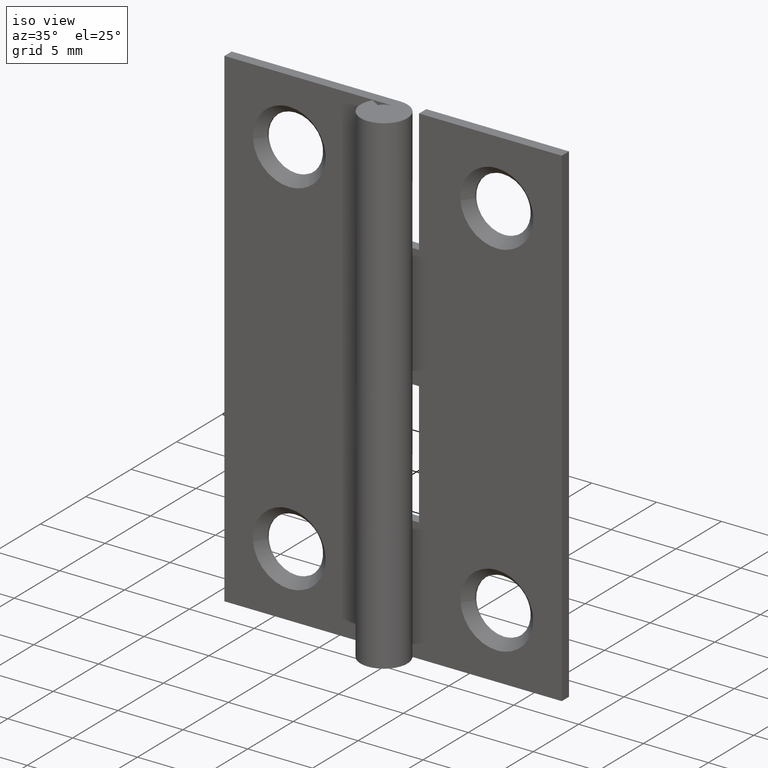
[diagram: clean part render]
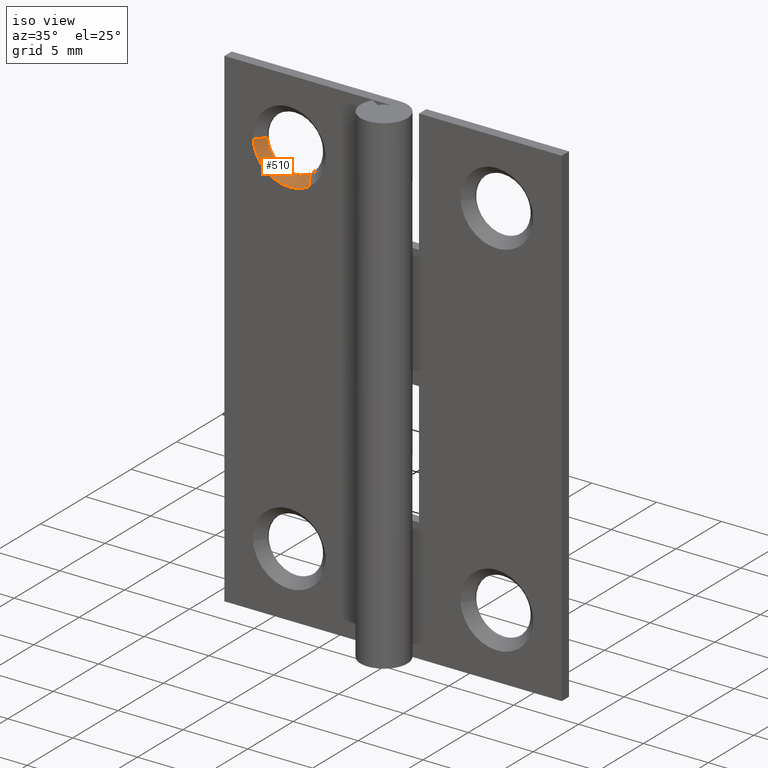
[diagram: same view with one face highlighted and labeled with its STEP entity id]
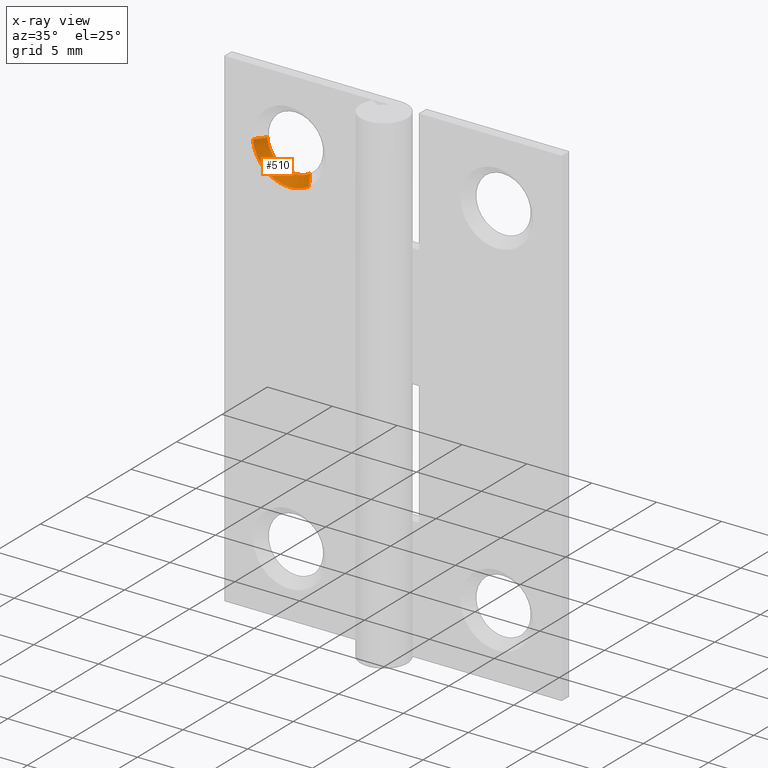
[diagram: x-ray of the same camera — body ghosted, the highlighted face saturated]
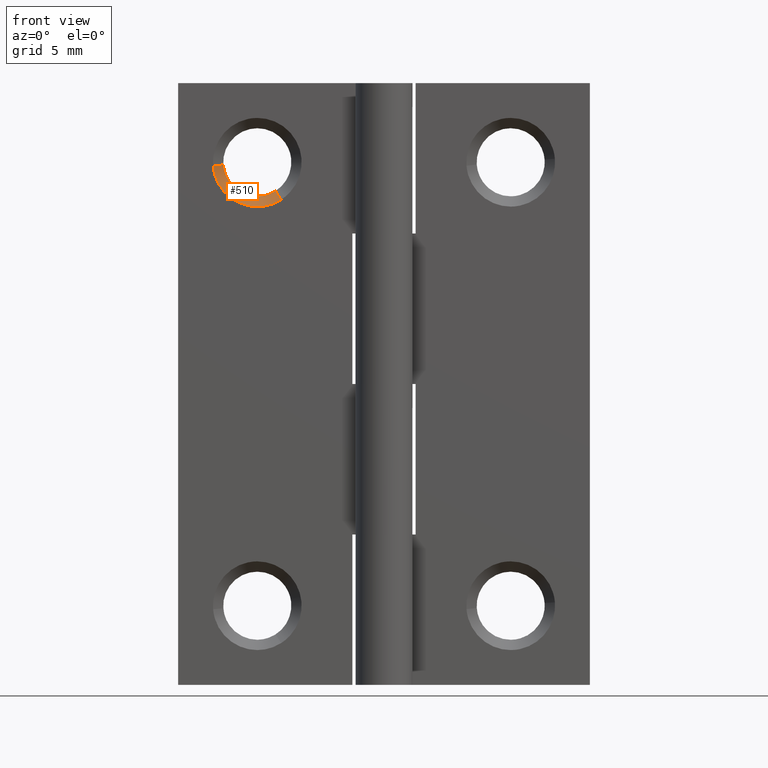
[diagram: same view with one face highlighted and labeled with its STEP entity id]
A machine part, iso view. The second image highlights one B-rep face of the part: STEP entity #510.
The next image is the same camera in x-ray: the body ghosted, the highlighted face saturated — about 0% of this face is hidden behind the body in this view.
A second angle (front view) of the same face is appended — the face is thin or edge-on in the first view.
In plain terms, the highlighted face is a freeform B-spline surface patch.
Its self-contained STEP definition (entity closure, byte-faithful):
#319=CARTESIAN_POINT('',(-6.843620794047136,1.649999952313591,31.187463894966118));
#320=VERTEX_POINT('',#319);
#336=CARTESIAN_POINT('',(-6.494017803996342,0.999999999999940,30.639487903379539));
#337=VERTEX_POINT('',#336);
#338=CARTESIAN_POINT('',(-6.843620794047136,1.649999952313591,31.187463894966118));
#339=CARTESIAN_POINT('',(-6.494017803996342,0.999999999999940,30.639487903379539));
#340=QUASI_UNIFORM_CURVE('',1,(#338,#339),.UNSPECIFIED.,.F.,.U.);
#341=EDGE_CURVE('',#320,#337,#340,.T.);
#360=CARTESIAN_POINT('',(-10.791368486928731,0.999999999968137,32.780314535458388));
#361=VERTEX_POINT('',#360);
#377=CARTESIAN_POINT('',(-10.143372267527150,1.649999952313921,32.831312944166797));
#378=VERTEX_POINT('',#377);
#379=CARTESIAN_POINT('',(-10.143372267527150,1.649999952313921,32.831312944166797));
#380=CARTESIAN_POINT('',(-10.791368486928731,0.999999999968137,32.780314535458388));
#381=QUASI_UNIFORM_CURVE('',1,(#379,#380),.UNSPECIFIED.,.F.,.U.);
#382=EDGE_CURVE('',#378,#361,#381,.T.);
#432=CARTESIAN_POINT('',(-10.127172362041479,1.666249951124192,32.832587904397180));
#433=CARTESIAN_POINT('',(-9.959760266438659,1.666249951124193,30.705415542355702));
#434=CARTESIAN_POINT('',(-7.832587904397179,1.666249951124192,30.872827637958519));
#435=CARTESIAN_POINT('',(-7.301485753890706,1.666249951124192,30.914626283701601));
#436=CARTESIAN_POINT('',(-6.852360868842992,1.666249951124192,31.201163294730598));
#437=CARTESIAN_POINT('',(-10.807973390037899,0.983343751221895,32.779007701485902));
#438=CARTESIAN_POINT('',(-10.586981091523803,0.983343751221895,29.971034311447998));
#439=CARTESIAN_POINT('',(-7.779007701485906,0.983343751221895,30.192026609962099));
#440=CARTESIAN_POINT('',(-7.077926429170562,0.983343751221895,30.247202902716097));
#441=CARTESIAN_POINT('',(-6.485059227376214,0.983343751221895,30.625446018595170));
#449=(BOUNDED_SURFACE()B_SPLINE_SURFACE(2,1,((#432,#437),(#433,#438),(#434,#439),(#435,#440),(#436,#441)),.UNSPECIFIED.,.F.,.F.,.U.)B_SPLINE_SURFACE_WITH_KNOTS((3,2,3),(2,2),(0.0,4.666788796142299,6.160161210907836),(0.0,1.0),.UNSPECIFIED.)GEOMETRIC_REPRESENTATION_ITEM()RATIONAL_B_SPLINE_SURFACE(((1.0,1.0),(0.707106781186548,0.707106781186548),(1.0,1.0),(0.906274169979695,0.906274169979695),(0.872532871172386,0.872532871172386)))REPRESENTATION_ITEM('')SURFACE());
#450=CARTESIAN_POINT('',(-8.0,1.649999952316285,30.850000000000001));
#451=VERTEX_POINT('',#450);
#452=CARTESIAN_POINT('',(-6.843620794047136,1.649999952313590,31.187463894966118));
#453=CARTESIAN_POINT('',(-7.372569680880419,1.649999952316285,30.850000000000005));
#454=CARTESIAN_POINT('',(-8.0,1.649999952316285,30.850000000000001));
#462=(BOUNDED_CURVE()B_SPLINE_CURVE(2,(#452,#453,#454),.UNSPECIFIED.,.F.,.U.)B_SPLINE_CURVE_WITH_KNOTS((3,3),(0.407950112620481,0.500000000000000),.UNSPECIFIED.)CURVE()GEOMETRIC_REPRESENTATION_ITEM()RATIONAL_B_SPLINE_CURVE((0.863729296950557,0.892156848775987,1.0))REPRESENTATION_ITEM(''));
#463=EDGE_CURVE('',#320,#451,#462,.T.);
#464=ORIENTED_EDGE('',*,*,#463,.T.);
#465=CARTESIAN_POINT('',(-8.0,1.649999952316285,30.850000000000001));
#466=CARTESIAN_POINT('',(-9.987439557031385,1.649999952316285,30.850000000000001));
#467=CARTESIAN_POINT('',(-10.143372267527154,1.649999952313921,32.831312944166797));
#475=(BOUNDED_CURVE()B_SPLINE_CURVE(2,(#465,#466,#467),.UNSPECIFIED.,.F.,.U.)B_SPLINE_CURVE_WITH_KNOTS((3,3),(0.500000000000000,0.736331300629864),.UNSPECIFIED.)CURVE()GEOMETRIC_REPRESENTATION_ITEM()RATIONAL_B_SPLINE_CURVE((1.0,0.723120658608598,0.969723356165757))REPRESENTATION_ITEM(''));
#476=EDGE_CURVE('',#451,#378,#475,.T.);
#477=ORIENTED_EDGE('',*,*,#476,.T.);
#478=ORIENTED_EDGE('',*,*,#382,.T.);
#479=CARTESIAN_POINT('',(-8.0,1.0,30.200000047683719));
#480=VERTEX_POINT('',#479);
#481=CARTESIAN_POINT('',(-8.0,1.0,30.200000047683719));
#482=CARTESIAN_POINT('',(-10.588293332113755,1.0,30.200000047683712));
#483=CARTESIAN_POINT('',(-10.791368486928727,0.999999999968137,32.780314535458395));
#491=(BOUNDED_CURVE()B_SPLINE_CURVE(2,(#481,#482,#483),.UNSPECIFIED.,.F.,.U.)B_SPLINE_CURVE_WITH_KNOTS((3,3),(0.500000000000000,0.736331300602999),.UNSPECIFIED.)CURVE()GEOMETRIC_REPRESENTATION_ITEM()RATIONAL_B_SPLINE_CURVE((1.0,0.723120658640072,0.969723356109692))REPRESENTATION_ITEM(''));
#492=EDGE_CURVE('',#480,#361,#491,.T.);
#493=ORIENTED_EDGE('',*,*,#492,.F.);
#494=CARTESIAN_POINT('',(-6.494017803996343,0.999999999999940,30.639487903379543));
#495=CARTESIAN_POINT('',(-7.182881458852243,1.0,30.200000047683723));
#496=CARTESIAN_POINT('',(-8.0,1.0,30.200000047683719));
#504=(BOUNDED_CURVE()B_SPLINE_CURVE(2,(#494,#495,#496),.UNSPECIFIED.,.F.,.U.)B_SPLINE_CURVE_WITH_KNOTS((3,3),(0.407950112627443,0.500000000000000),.UNSPECIFIED.)CURVE()GEOMETRIC_REPRESENTATION_ITEM()RATIONAL_B_SPLINE_CURVE((0.863729296954857,0.892156848784144,1.0))REPRESENTATION_ITEM(''));
#505=EDGE_CURVE('',#337,#480,#504,.T.);
#506=ORIENTED_EDGE('',*,*,#505,.F.);
#507=ORIENTED_EDGE('',*,*,#341,.F.);
#508=EDGE_LOOP('',(#464,#477,#478,#493,#506,#507));
#509=FACE_OUTER_BOUND('',#508,.T.);
#510=ADVANCED_FACE('',(#509),#449,.F.);